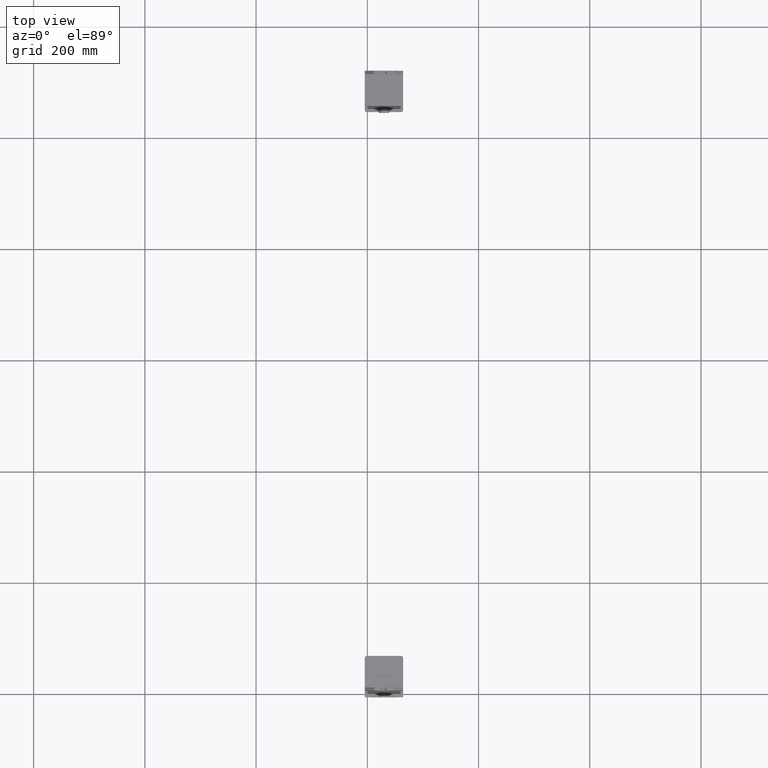
[diagram: clean part render]
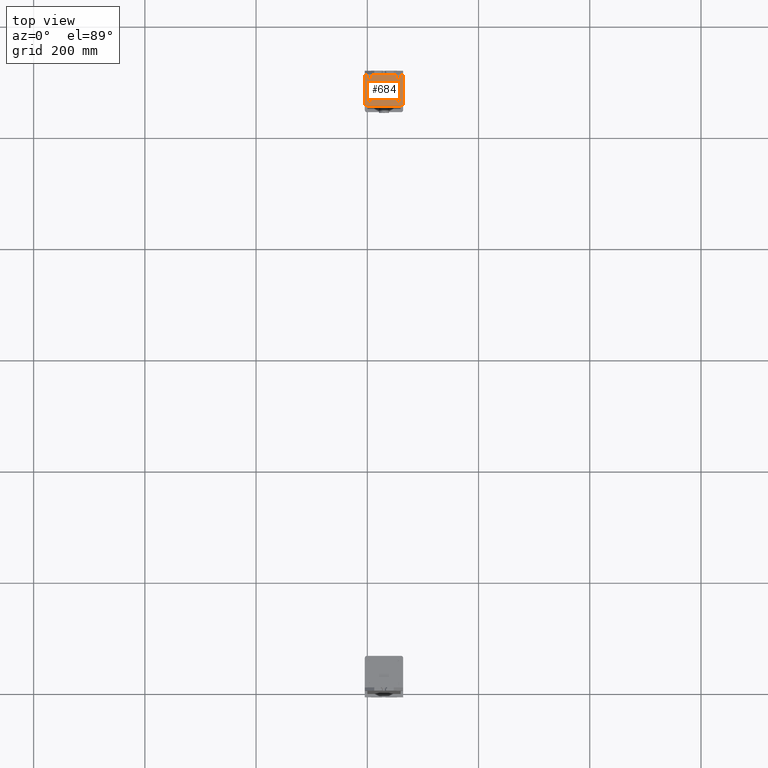
[diagram: same view with one face highlighted and labeled with its STEP entity id]
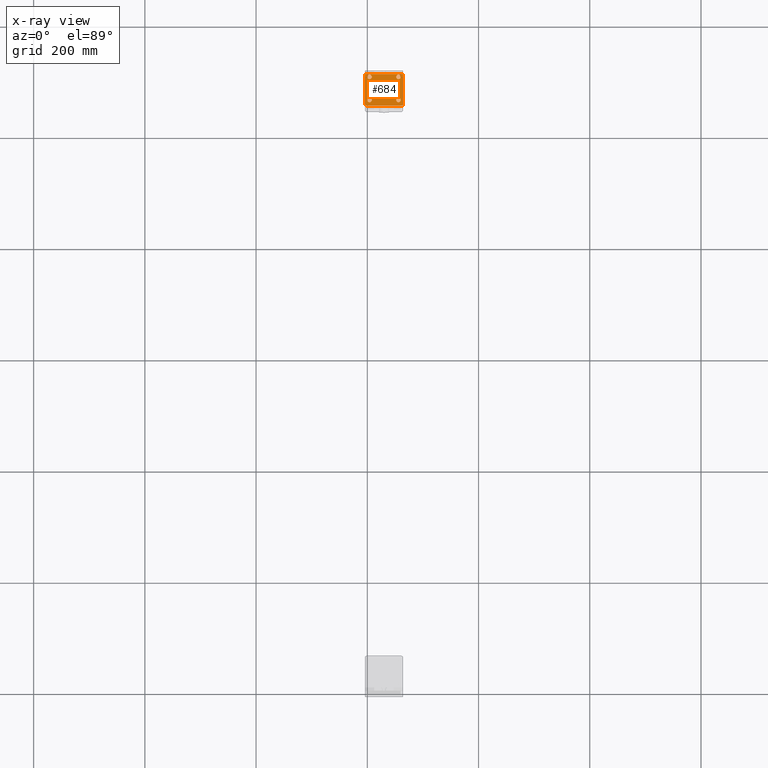
[diagram: x-ray of the same camera — body ghosted, the highlighted face saturated]
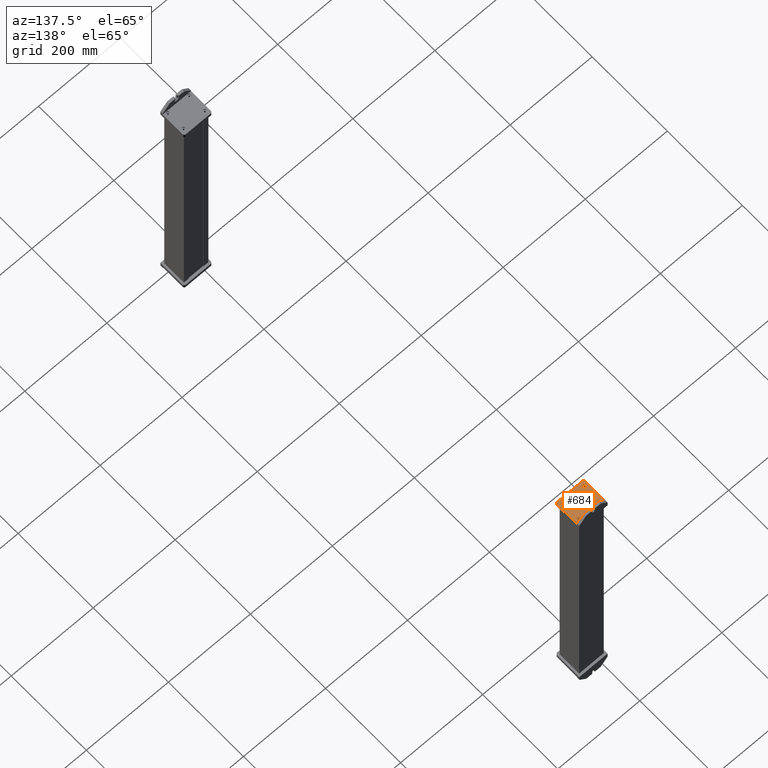
[diagram: same view with one face highlighted and labeled with its STEP entity id]
A machine part, top view. The second image highlights one B-rep face of the part: STEP entity #684.
The next image is the same camera in x-ray: the body ghosted, the highlighted face saturated — about 0% of this face is hidden behind the body in this view.
A second angle (auxiliary view) of the same face is appended — the face is thin or edge-on in the first view.
In plain terms, the highlighted planar face has unit normal (-0, -0, 1).
Its self-contained STEP definition (entity closure, byte-faithful):
#158=CARTESIAN_POINT('Line Origine',(32.5,9.,34.5)) ;
#162=CARTESIAN_POINT('Vertex',(59.,9.,34.5)) ;
#164=CARTESIAN_POINT('Vertex',(6.,9.,34.5)) ;
#205=CARTESIAN_POINT('Axis2P3D Location',(59.,9.,30.5)) ;
#209=CARTESIAN_POINT('Vertex',(63.,9.,30.5)) ;
#242=CARTESIAN_POINT('Vertex',(59.,9.,-34.5)) ;
#261=CARTESIAN_POINT('Vertex',(6.,9.,-34.5)) ;
#264=CARTESIAN_POINT('Line Origine',(32.5,9.,-34.5)) ;
#283=CARTESIAN_POINT('Line Origine',(63.,9.,0.)) ;
#287=CARTESIAN_POINT('Vertex',(63.,9.,-30.5)) ;
#314=CARTESIAN_POINT('Axis2P3D Location',(59.,9.,-30.5)) ;
#594=CARTESIAN_POINT('Axis2P3D Location',(63.,9.,0.)) ;
#599=CARTESIAN_POINT('Line Origine',(6.,9.,0.)) ;
#612=CARTESIAN_POINT('Axis2P3D Location',(52.5,9.,26.)) ;
#616=CARTESIAN_POINT('Vertex',(48.5,9.,26.)) ;
#618=CARTESIAN_POINT('Vertex',(56.5,9.,26.)) ;
#621=CARTESIAN_POINT('Axis2P3D Location',(52.5,9.,26.)) ;
#630=CARTESIAN_POINT('Axis2P3D Location',(11.,9.,26.)) ;
#634=CARTESIAN_POINT('Vertex',(7.,9.,26.)) ;
#636=CARTESIAN_POINT('Vertex',(15.,9.,26.)) ;
#639=CARTESIAN_POINT('Axis2P3D Location',(11.,9.,26.)) ;
#648=CARTESIAN_POINT('Axis2P3D Location',(52.5,9.,-26.)) ;
#652=CARTESIAN_POINT('Vertex',(48.5,9.,-26.)) ;
#654=CARTESIAN_POINT('Vertex',(56.5,9.,-26.)) ;
#657=CARTESIAN_POINT('Axis2P3D Location',(52.5,9.,-26.)) ;
#666=CARTESIAN_POINT('Axis2P3D Location',(11.,9.,-26.)) ;
#670=CARTESIAN_POINT('Vertex',(7.,9.,-26.)) ;
#672=CARTESIAN_POINT('Vertex',(15.,9.,-26.)) ;
#675=CARTESIAN_POINT('Axis2P3D Location',(11.,9.,-26.)) ;
#159=DIRECTION('Vector Direction',(-1.,-1.34064667125E-016,0.)) ;
#206=DIRECTION('Axis2P3D Direction',(-0.,1.,0.)) ;
#265=DIRECTION('Vector Direction',(-1.,-1.34064667125E-016,0.)) ;
#284=DIRECTION('Vector Direction',(0.,0.,1.)) ;
#315=DIRECTION('Axis2P3D Direction',(0.,1.,0.)) ;
#595=DIRECTION('Axis2P3D Direction',(-1.24656620309E-016,1.,0.)) ;
#596=DIRECTION('Axis2P3D XDirection',(-1.,-1.24656620309E-016,0.)) ;
#600=DIRECTION('Vector Direction',(0.,0.,1.)) ;
#613=DIRECTION('Axis2P3D Direction',(-1.24656620309E-016,1.,0.)) ;
#622=DIRECTION('Axis2P3D Direction',(-1.24656620309E-016,1.,0.)) ;
#631=DIRECTION('Axis2P3D Direction',(-1.24656620309E-016,1.,0.)) ;
#640=DIRECTION('Axis2P3D Direction',(-1.24656620309E-016,1.,0.)) ;
#649=DIRECTION('Axis2P3D Direction',(-1.24656620309E-016,1.,0.)) ;
#658=DIRECTION('Axis2P3D Direction',(-1.24656620309E-016,1.,0.)) ;
#667=DIRECTION('Axis2P3D Direction',(-1.24656620309E-016,1.,0.)) ;
#676=DIRECTION('Axis2P3D Direction',(-1.24656620309E-016,1.,0.)) ;
#207=AXIS2_PLACEMENT_3D('Circle Axis2P3D',#205,#206,$) ;
#316=AXIS2_PLACEMENT_3D('Circle Axis2P3D',#314,#315,$) ;
#597=AXIS2_PLACEMENT_3D('Plane Axis2P3D',#594,#595,#596) ;
#614=AXIS2_PLACEMENT_3D('Circle Axis2P3D',#612,#613,$) ;
#623=AXIS2_PLACEMENT_3D('Circle Axis2P3D',#621,#622,$) ;
#632=AXIS2_PLACEMENT_3D('Circle Axis2P3D',#630,#631,$) ;
#641=AXIS2_PLACEMENT_3D('Circle Axis2P3D',#639,#640,$) ;
#650=AXIS2_PLACEMENT_3D('Circle Axis2P3D',#648,#649,$) ;
#659=AXIS2_PLACEMENT_3D('Circle Axis2P3D',#657,#658,$) ;
#668=AXIS2_PLACEMENT_3D('Circle Axis2P3D',#666,#667,$) ;
#677=AXIS2_PLACEMENT_3D('Circle Axis2P3D',#675,#676,$) ;
#605=ORIENTED_EDGE('',*,*,#268,.T.) ;
#606=ORIENTED_EDGE('',*,*,#603,.T.) ;
#607=ORIENTED_EDGE('',*,*,#166,.F.) ;
#608=ORIENTED_EDGE('',*,*,#211,.F.) ;
#609=ORIENTED_EDGE('',*,*,#289,.F.) ;
#610=ORIENTED_EDGE('',*,*,#318,.F.) ;
#627=ORIENTED_EDGE('',*,*,#620,.F.) ;
#628=ORIENTED_EDGE('',*,*,#625,.F.) ;
#645=ORIENTED_EDGE('',*,*,#638,.F.) ;
#646=ORIENTED_EDGE('',*,*,#643,.F.) ;
#663=ORIENTED_EDGE('',*,*,#656,.F.) ;
#664=ORIENTED_EDGE('',*,*,#661,.F.) ;
#681=ORIENTED_EDGE('',*,*,#674,.F.) ;
#682=ORIENTED_EDGE('',*,*,#679,.F.) ;
#629=FACE_BOUND('',#626,.T.) ;
#647=FACE_BOUND('',#644,.T.) ;
#665=FACE_BOUND('',#662,.T.) ;
#683=FACE_BOUND('',#680,.T.) ;
#160=VECTOR('Line Direction',#159,1.) ;
#266=VECTOR('Line Direction',#265,1.) ;
#285=VECTOR('Line Direction',#284,1.) ;
#601=VECTOR('Line Direction',#600,1.) ;
#684=ADVANCED_FACE('PartBody',(#611,#629,#647,#665,#683),#598,.T.) ;
#208=CIRCLE('generated circle',#207,4.) ;
#317=CIRCLE('generated circle',#316,4.) ;
#615=CIRCLE('generated circle',#614,4.) ;
#624=CIRCLE('generated circle',#623,4.) ;
#633=CIRCLE('generated circle',#632,4.) ;
#642=CIRCLE('generated circle',#641,4.) ;
#651=CIRCLE('generated circle',#650,4.) ;
#660=CIRCLE('generated circle',#659,4.) ;
#669=CIRCLE('generated circle',#668,4.) ;
#678=CIRCLE('generated circle',#677,4.) ;
#166=EDGE_CURVE('',#163,#165,#161,.T.) ;
#211=EDGE_CURVE('',#210,#163,#208,.F.) ;
#268=EDGE_CURVE('',#243,#262,#267,.T.) ;
#289=EDGE_CURVE('',#288,#210,#286,.T.) ;
#318=EDGE_CURVE('',#243,#288,#317,.F.) ;
#603=EDGE_CURVE('',#262,#165,#602,.T.) ;
#620=EDGE_CURVE('',#617,#619,#615,.T.) ;
#625=EDGE_CURVE('',#619,#617,#624,.T.) ;
#638=EDGE_CURVE('',#635,#637,#633,.T.) ;
#643=EDGE_CURVE('',#637,#635,#642,.T.) ;
#656=EDGE_CURVE('',#653,#655,#651,.T.) ;
#661=EDGE_CURVE('',#655,#653,#660,.T.) ;
#674=EDGE_CURVE('',#671,#673,#669,.T.) ;
#679=EDGE_CURVE('',#673,#671,#678,.T.) ;
#604=EDGE_LOOP('',(#605,#606,#607,#608,#609,#610)) ;
#626=EDGE_LOOP('',(#627,#628)) ;
#644=EDGE_LOOP('',(#645,#646)) ;
#662=EDGE_LOOP('',(#663,#664)) ;
#680=EDGE_LOOP('',(#681,#682)) ;
#611=FACE_OUTER_BOUND('',#604,.T.) ;
#161=LINE('Line',#158,#160) ;
#267=LINE('Line',#264,#266) ;
#286=LINE('Line',#283,#285) ;
#602=LINE('Line',#599,#601) ;
#598=PLANE('Plane',#597) ;
#163=VERTEX_POINT('',#162) ;
#165=VERTEX_POINT('',#164) ;
#210=VERTEX_POINT('',#209) ;
#243=VERTEX_POINT('',#242) ;
#262=VERTEX_POINT('',#261) ;
#288=VERTEX_POINT('',#287) ;
#617=VERTEX_POINT('',#616) ;
#619=VERTEX_POINT('',#618) ;
#635=VERTEX_POINT('',#634) ;
#637=VERTEX_POINT('',#636) ;
#653=VERTEX_POINT('',#652) ;
#655=VERTEX_POINT('',#654) ;
#671=VERTEX_POINT('',#670) ;
#673=VERTEX_POINT('',#672) ;